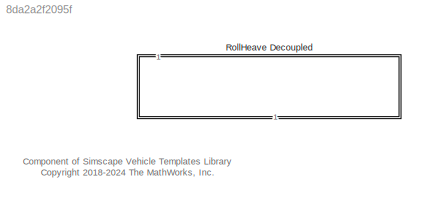
MODEL slx_8da2a2f2095f
KIND library
CONFIG AbsTol = auto
CONFIG EnableMultiTasking = off
CONFIG FixedStep = auto
CONFIG MaxStep = auto
CONFIG MinStep = auto
CONFIG RelTol = 1e-3
CONFIG SampleTimeConstraint = Unconstrained
CONFIG SolverName = VariableStepAuto
CONFIG StartTime = 0.0
CONFIG StopTime = 10.0
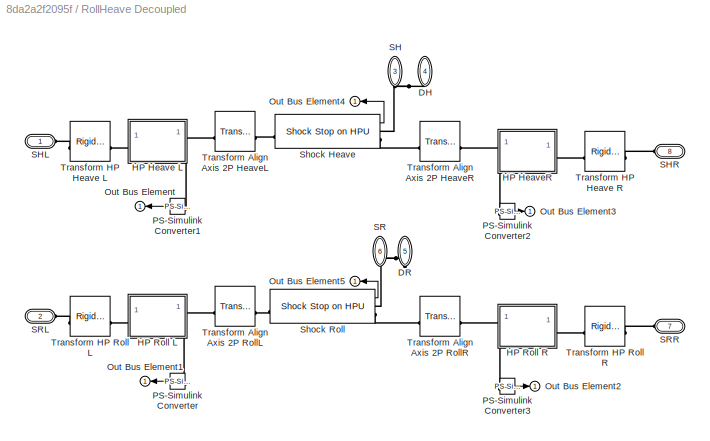
BLOCK [SubSystem] RollHeave Decoupled
  NameLocation = left
  VariantControl = Variant1
BLOCK [PMIOPort] RollHeave Decoupled/DH
  NameLocation = right
  Port = 4
  Side = Left
BLOCK [PMIOPort] RollHeave Decoupled/DR
  NameLocation = right
  Port = 5
  Side = Left
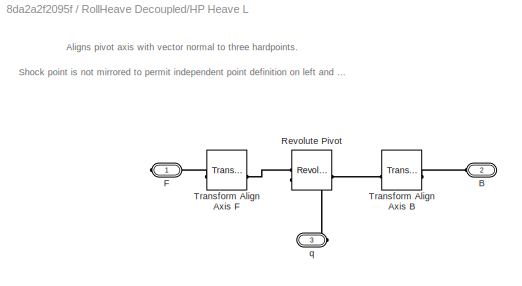
BLOCK [SubSystem] RollHeave Decoupled/HP Heave L
BLOCK [PMIOPort] RollHeave Decoupled/HP Heave L/B
  Port = 2
  Side = Left
BLOCK [PMIOPort] RollHeave Decoupled/HP Heave L/F
  Side = Right
BLOCK [Reference] RollHeave Decoupled/HP Heave L/Revolute Pivot  REF=sm_lib/Joints/Revolute Joint
  SourceBlock = sm_lib/Joints/Revolute Joint
  SourceType = Revolute Joint
BLOCK [Reference] RollHeave Decoupled/HP Heave L/Transform Align Axis B  REF=Suspension_Utilities/Transform
Align Axis Three Points
  SourceBlock = Suspension_Utilities/Transform\nAlign Axis Three Points
  SourceType = Transform Align Axis Three Points
BLOCK [Reference] RollHeave Decoupled/HP Heave L/Transform Align Axis F  REF=Suspension_Utilities/Transform
Align Axis Three Points
  SourceBlock = Suspension_Utilities/Transform\nAlign Axis Three Points
  SourceType = Transform Align Axis Three Points
BLOCK [PMIOPort] RollHeave Decoupled/HP Heave L/q
  Port = 3
  Side = Right
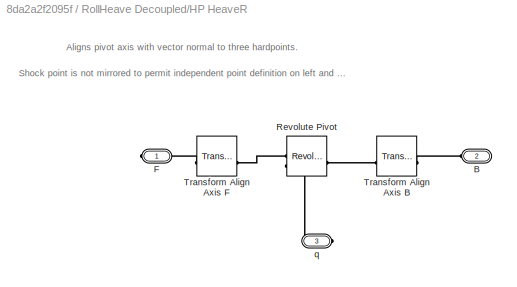
BLOCK [SubSystem] RollHeave Decoupled/HP HeaveR
BLOCK [PMIOPort] RollHeave Decoupled/HP HeaveR/B
  Port = 2
  Side = Left
BLOCK [PMIOPort] RollHeave Decoupled/HP HeaveR/F
  Side = Right
BLOCK [Reference] RollHeave Decoupled/HP HeaveR/Revolute Pivot  REF=sm_lib/Joints/Revolute Joint
  SourceBlock = sm_lib/Joints/Revolute Joint
  SourceType = Revolute Joint
BLOCK [Reference] RollHeave Decoupled/HP HeaveR/Transform Align Axis B  REF=Suspension_Utilities/Transform
Align Axis Three Points
  SourceBlock = Suspension_Utilities/Transform\nAlign Axis Three Points
  SourceType = Transform Align Axis Three Points
BLOCK [Reference] RollHeave Decoupled/HP HeaveR/Transform Align Axis F  REF=Suspension_Utilities/Transform
Align Axis Three Points
  SourceBlock = Suspension_Utilities/Transform\nAlign Axis Three Points
  SourceType = Transform Align Axis Three Points
BLOCK [PMIOPort] RollHeave Decoupled/HP HeaveR/q
  Port = 3
  Side = Right
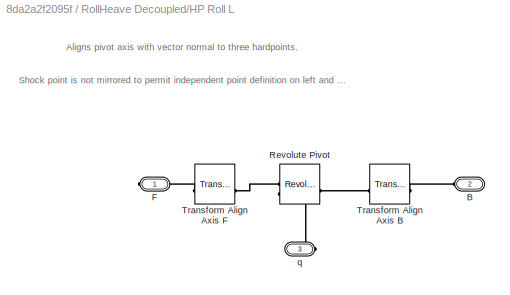
BLOCK [SubSystem] RollHeave Decoupled/HP Roll L
BLOCK [PMIOPort] RollHeave Decoupled/HP Roll L/B
  Port = 2
  Side = Left
BLOCK [PMIOPort] RollHeave Decoupled/HP Roll L/F
  Side = Right
BLOCK [Reference] RollHeave Decoupled/HP Roll L/Revolute Pivot  REF=sm_lib/Joints/Revolute Joint
  SourceBlock = sm_lib/Joints/Revolute Joint
  SourceType = Revolute Joint
BLOCK [Reference] RollHeave Decoupled/HP Roll L/Transform Align Axis B  REF=Suspension_Utilities/Transform
Align Axis Three Points
  SourceBlock = Suspension_Utilities/Transform\nAlign Axis Three Points
  SourceType = Transform Align Axis Three Points
BLOCK [Reference] RollHeave Decoupled/HP Roll L/Transform Align Axis F  REF=Suspension_Utilities/Transform
Align Axis Three Points
  SourceBlock = Suspension_Utilities/Transform\nAlign Axis Three Points
  SourceType = Transform Align Axis Three Points
BLOCK [PMIOPort] RollHeave Decoupled/HP Roll L/q
  Port = 3
  Side = Right
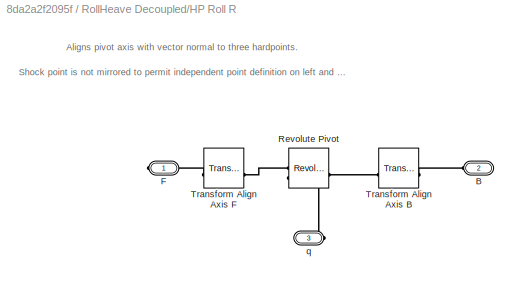
BLOCK [SubSystem] RollHeave Decoupled/HP Roll R
BLOCK [PMIOPort] RollHeave Decoupled/HP Roll R/B
  Port = 2
  Side = Left
BLOCK [PMIOPort] RollHeave Decoupled/HP Roll R/F
  Side = Right
BLOCK [Reference] RollHeave Decoupled/HP Roll R/Revolute Pivot  REF=sm_lib/Joints/Revolute Joint
  SourceBlock = sm_lib/Joints/Revolute Joint
  SourceType = Revolute Joint
BLOCK [Reference] RollHeave Decoupled/HP Roll R/Transform Align Axis B  REF=Suspension_Utilities/Transform
Align Axis Three Points
  SourceBlock = Suspension_Utilities/Transform\nAlign Axis Three Points
  SourceType = Transform Align Axis Three Points
BLOCK [Reference] RollHeave Decoupled/HP Roll R/Transform Align Axis F  REF=Suspension_Utilities/Transform
Align Axis Three Points
  SourceBlock = Suspension_Utilities/Transform\nAlign Axis Three Points
  SourceType = Transform Align Axis Three Points
BLOCK [PMIOPort] RollHeave Decoupled/HP Roll R/q
  Port = 3
  Side = Right
BLOCK [Outport] RollHeave Decoupled/Out Bus Element
  VectorParamsAs1DForOutWhenUnconnected = off
BLOCK [Outport] RollHeave Decoupled/Out Bus Element1
  VectorParamsAs1DForOutWhenUnconnected = off
BLOCK [Outport] RollHeave Decoupled/Out Bus Element2
  VectorParamsAs1DForOutWhenUnconnected = off
BLOCK [Outport] RollHeave Decoupled/Out Bus Element3
  VectorParamsAs1DForOutWhenUnconnected = off
BLOCK [Outport] RollHeave Decoupled/Out Bus Element4
  VectorParamsAs1DForOutWhenUnconnected = off
BLOCK [Outport] RollHeave Decoupled/Out Bus Element5
  VectorParamsAs1DForOutWhenUnconnected = off
BLOCK [Reference] RollHeave Decoupled/PS-Simulink Converter  REF=nesl_utility/PS-Simulink
Converter
  SourceBlock = nesl_utility/PS-Simulink\nConverter
  SourceType = PS-Simulink\nConverter
BLOCK [Reference] RollHeave Decoupled/PS-Simulink Converter1  REF=nesl_utility/PS-Simulink
Converter
  SourceBlock = nesl_utility/PS-Simulink\nConverter
  SourceType = PS-Simulink\nConverter
BLOCK [Reference] RollHeave Decoupled/PS-Simulink Converter2  REF=nesl_utility/PS-Simulink
Converter
  SourceBlock = nesl_utility/PS-Simulink\nConverter
  SourceType = PS-Simulink\nConverter
BLOCK [Reference] RollHeave Decoupled/PS-Simulink Converter3  REF=nesl_utility/PS-Simulink
Converter
  SourceBlock = nesl_utility/PS-Simulink\nConverter
  SourceType = PS-Simulink\nConverter
BLOCK [PMIOPort] RollHeave Decoupled/SH
  NameLocation = left
  Port = 3
  Side = Left
BLOCK [PMIOPort] RollHeave Decoupled/SHL
  Side = Left
BLOCK [PMIOPort] RollHeave Decoupled/SHR
  Port = 8
  Side = Left
BLOCK [PMIOPort] RollHeave Decoupled/SR
  NameLocation = left
  Port = 6
  Side = Left
BLOCK [PMIOPort] RollHeave Decoupled/SRL
  Port = 2
  Side = Left
BLOCK [PMIOPort] RollHeave Decoupled/SRR
  Port = 7
  Side = Left
BLOCK [Reference] RollHeave Decoupled/Shock Heave  REF=Linkage_Shock/Shock Stop on HPU
  SourceBlock = Linkage_Shock/Shock Stop on HPU
BLOCK [Reference] RollHeave Decoupled/Shock Roll  REF=Linkage_Shock/Shock Stop on HPU
  SourceBlock = Linkage_Shock/Shock Stop on HPU
BLOCK [Reference] RollHeave Decoupled/Transform Align Axis 2P HeaveL  REF=Suspension_Utilities/Transform
Align Axis Two Points
  SourceBlock = Suspension_Utilities/Transform\nAlign Axis Two Points
  SourceType = Transform Align Axis Two Points
BLOCK [Reference] RollHeave Decoupled/Transform Align Axis 2P HeaveR  REF=Suspension_Utilities/Transform
Align Axis Two Points
  SourceBlock = Suspension_Utilities/Transform\nAlign Axis Two Points
  SourceType = Transform Align Axis Two Points
BLOCK [Reference] RollHeave Decoupled/Transform Align Axis 2P RollL  REF=Suspension_Utilities/Transform
Align Axis Two Points
  SourceBlock = Suspension_Utilities/Transform\nAlign Axis Two Points
  SourceType = Transform Align Axis Two Points
BLOCK [Reference] RollHeave Decoupled/Transform Align Axis 2P RollR  REF=Suspension_Utilities/Transform
Align Axis Two Points
  SourceBlock = Suspension_Utilities/Transform\nAlign Axis Two Points
  SourceType = Transform Align Axis Two Points
BLOCK [Reference] RollHeave Decoupled/Transform HP Heave L   REF=sm_lib/Frames and
Transforms/Rigid
Transform
  SourceBlock = sm_lib/Frames and\nTransforms/Rigid\nTransform
  SourceType = Rigid\nTransform
BLOCK [Reference] RollHeave Decoupled/Transform HP Heave R  REF=sm_lib/Frames and
Transforms/Rigid
Transform
  SourceBlock = sm_lib/Frames and\nTransforms/Rigid\nTransform
  SourceType = Rigid\nTransform
BLOCK [Reference] RollHeave Decoupled/Transform HP Roll L  REF=sm_lib/Frames and
Transforms/Rigid
Transform
  SourceBlock = sm_lib/Frames and\nTransforms/Rigid\nTransform
  SourceType = Rigid\nTransform
BLOCK [Reference] RollHeave Decoupled/Transform HP Roll R  REF=sm_lib/Frames and
Transforms/Rigid
Transform
  SourceBlock = sm_lib/Frames and\nTransforms/Rigid\nTransform
  SourceType = Rigid\nTransform
ANNOTATION (root): Component of Simscape Vehicle Templates Library <copyright redacted>
ANNOTATION RollHeave Decoupled/HP Heave L: Aligns pivot axis with vector normal to three hardpoints.
ANNOTATION RollHeave Decoupled/HP Heave L: Shock point is not mirrored to permit independent point definition on left and right sides.
ANNOTATION RollHeave Decoupled/HP HeaveR: Aligns pivot axis with vector normal to three hardpoints.
ANNOTATION RollHeave Decoupled/HP HeaveR: Shock point is not mirrored to permit independent point definition on left and right sides.
ANNOTATION RollHeave Decoupled/HP Roll L: Aligns pivot axis with vector normal to three hardpoints.
ANNOTATION RollHeave Decoupled/HP Roll L: Shock point is not mirrored to permit independent point definition on left and right sides.
ANNOTATION RollHeave Decoupled/HP Roll R: Aligns pivot axis with vector normal to three hardpoints.
ANNOTATION RollHeave Decoupled/HP Roll R: Shock point is not mirrored to permit independent point definition on left and right sides.
LINE RollHeave Decoupled/PS-Simulink Converter1:1 -> RollHeave Decoupled/Out Bus Element:1
LINE RollHeave Decoupled/PS-Simulink Converter2:1 -> RollHeave Decoupled/Out Bus Element3:1
LINE RollHeave Decoupled/PS-Simulink Converter3:1 -> RollHeave Decoupled/Out Bus Element2:1
LINE RollHeave Decoupled/PS-Simulink Converter:1 -> RollHeave Decoupled/Out Bus Element1:1
LINE RollHeave Decoupled/Shock Heave:1 -> RollHeave Decoupled/Out Bus Element4:1
LINE RollHeave Decoupled/Shock Roll:1 -> RollHeave Decoupled/Out Bus Element5:1
PNET net1: RollHeave Decoupled/DH:RConn1 -- RollHeave Decoupled/SH:RConn1 -- RollHeave Decoupled/Shock Heave:RConn1
PNET net2: RollHeave Decoupled/DR:RConn1 -- RollHeave Decoupled/SR:RConn1 -- RollHeave Decoupled/Shock Roll:RConn1
PLINE RollHeave Decoupled/HP Heave L:LConn1 -- RollHeave Decoupled/Transform HP Heave L :RConn1
PLINE RollHeave Decoupled/HP Heave L:RConn1 -- RollHeave Decoupled/Transform Align Axis 2P HeaveL:LConn1
PLINE RollHeave Decoupled/HP Heave L:RConn2 -- RollHeave Decoupled/PS-Simulink Converter1:LConn1
PLINE RollHeave Decoupled/HP HeaveR:LConn1 -- RollHeave Decoupled/Transform HP Heave R:RConn1
PLINE RollHeave Decoupled/HP HeaveR:RConn1 -- RollHeave Decoupled/Transform Align Axis 2P HeaveR:LConn1
PLINE RollHeave Decoupled/HP HeaveR:RConn2 -- RollHeave Decoupled/PS-Simulink Converter2:LConn1
PLINE RollHeave Decoupled/HP Roll L:LConn1 -- RollHeave Decoupled/Transform HP Roll L:RConn1
PLINE RollHeave Decoupled/HP Roll L:RConn1 -- RollHeave Decoupled/Transform Align Axis 2P RollL:LConn1
PLINE RollHeave Decoupled/HP Roll L:RConn2 -- RollHeave Decoupled/PS-Simulink Converter:LConn1
PLINE RollHeave Decoupled/HP Roll R:LConn1 -- RollHeave Decoupled/Transform HP Roll R:RConn1
PLINE RollHeave Decoupled/HP Roll R:RConn1 -- RollHeave Decoupled/Transform Align Axis 2P RollR:LConn1
PLINE RollHeave Decoupled/HP Roll R:RConn2 -- RollHeave Decoupled/PS-Simulink Converter3:LConn1
PLINE RollHeave Decoupled/SHL:RConn1 -- RollHeave Decoupled/Transform HP Heave L :LConn1
PLINE RollHeave Decoupled/SHR:RConn1 -- RollHeave Decoupled/Transform HP Heave R:LConn1
PLINE RollHeave Decoupled/SRL:RConn1 -- RollHeave Decoupled/Transform HP Roll L:LConn1
PLINE RollHeave Decoupled/SRR:RConn1 -- RollHeave Decoupled/Transform HP Roll R:LConn1
PLINE RollHeave Decoupled/Shock Heave:LConn1 -- RollHeave Decoupled/Transform Align Axis 2P HeaveL:RConn1
PLINE RollHeave Decoupled/Shock Heave:RConn2 -- RollHeave Decoupled/Transform Align Axis 2P HeaveR:RConn1
PLINE RollHeave Decoupled/Shock Roll:LConn1 -- RollHeave Decoupled/Transform Align Axis 2P RollL:RConn1
PLINE RollHeave Decoupled/Shock Roll:RConn2 -- RollHeave Decoupled/Transform Align Axis 2P RollR:RConn1
note: PNET lines group multi-terminal physical nets as a canonical sorted terminal list (undirected conserving connections); 2-terminal nets keep the pairwise PLINE form
